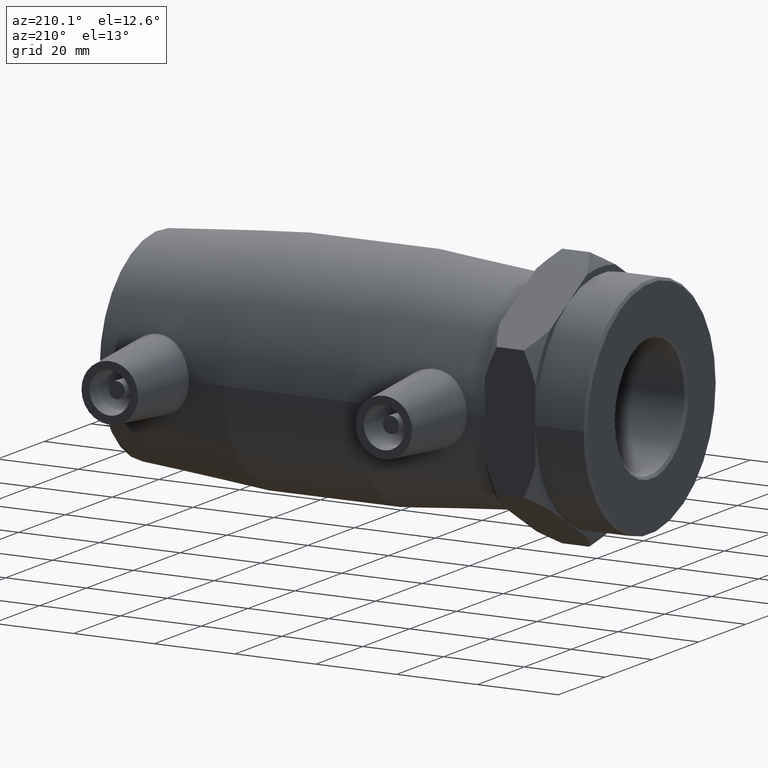
[diagram: clean part render]
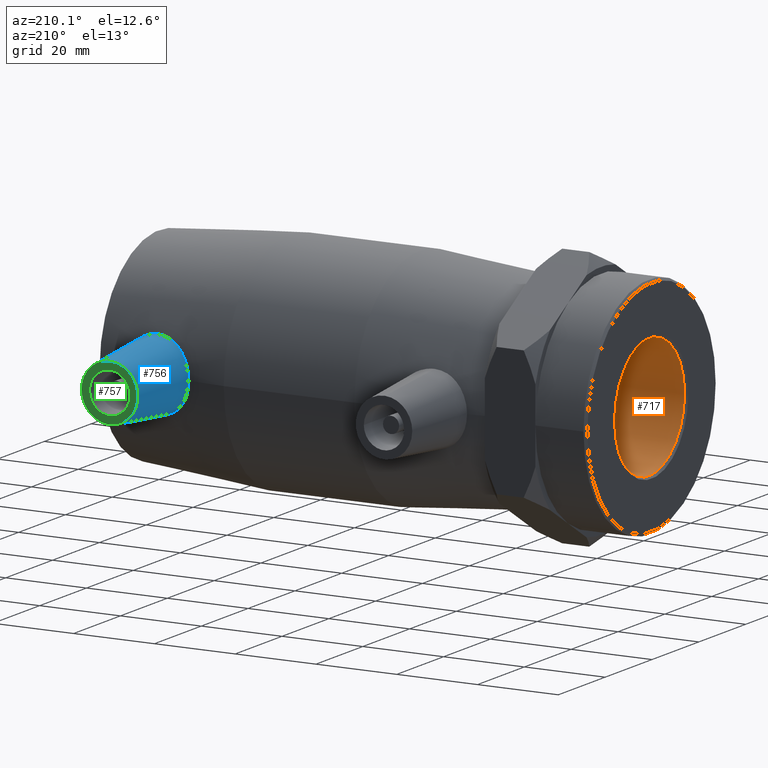
[diagram: same view with three faces highlighted in distinct colors, each labeled with its STEP entity id]
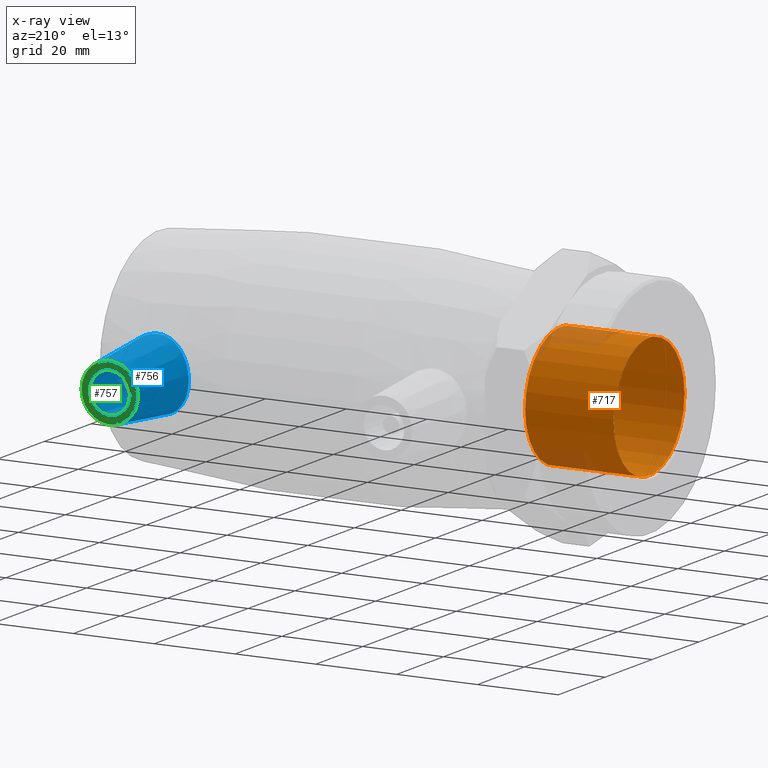
[diagram: x-ray of the same camera — body ghosted, the three highlighted faces saturated]
A machine part, auxiliary view with three faces highlighted in distinct colors.
The next image is the same camera in x-ray (body ghosted, the three faces saturated) — at least one of them is partly hidden behind the body in this view.
Their STEP definitions:

[orange] entity #717 — the highlighted cylindrical surface (bore or boss wall) has radius 15.1455 mm, axis along (1, 0, 0).
#90=CYLINDRICAL_SURFACE('',#780,15.1455);
#128=FACE_BOUND('',#218,.T.);
#158=FACE_OUTER_BOUND('',#217,.T.);
#217=EDGE_LOOP('',(#512));
#218=EDGE_LOOP('',(#513));
#295=CIRCLE('',#776,15.1455);
#298=CIRCLE('',#781,15.1455);
#340=VERTEX_POINT('',#1104);
#343=VERTEX_POINT('',#1112);
#411=EDGE_CURVE('',#340,#340,#295,.T.);
#414=EDGE_CURVE('',#343,#343,#298,.T.);
#512=ORIENTED_EDGE('',*,*,#414,.T.);
#513=ORIENTED_EDGE('',*,*,#411,.F.);
#717=ADVANCED_FACE('',(#158,#128),#90,.F.);
#776=AXIS2_PLACEMENT_3D('',#1105,#885,#886);
#780=AXIS2_PLACEMENT_3D('',#1111,#893,#894);
#781=AXIS2_PLACEMENT_3D('',#1113,#895,#896);
#885=DIRECTION('center_axis',(1.,0.,0.));
#886=DIRECTION('ref_axis',(0.,-1.,0.));
#893=DIRECTION('center_axis',(1.,0.,0.));
#894=DIRECTION('ref_axis',(0.,1.,0.));
#895=DIRECTION('center_axis',(1.,0.,0.));
#896=DIRECTION('ref_axis',(0.,0.,-1.));
#1104=CARTESIAN_POINT('',(-72.9,15.1455,1.85478880964862E-15));
#1105=CARTESIAN_POINT('Origin',(-72.9,0.,0.));
#1111=CARTESIAN_POINT('Origin',(-62.25,0.,0.));
#1112=CARTESIAN_POINT('',(-51.,15.1455,0.));
#1113=CARTESIAN_POINT('Origin',(-51.,0.,0.));

[blue] entity #756 — the highlighted conical surface has half-angle 5 deg.
#15=B_SPLINE_CURVE_WITH_KNOTS('',3,(#1338,#1339,#1340,#1341,#1342,#1343,
#1344,#1345,#1346,#1347,#1348,#1349,#1350,#1351,#1352,#1353,#1354,#1355,
#1356,#1357,#1358,#1359,#1360,#1361,#1362,#1363,#1364,#1365,#1366,#1367,
#1368,#1369,#1370,#1371),.UNSPECIFIED.,.T.,.F.,(4,2,2,2,2,2,2,2,2,2,2,2,
2,2,2,2,4),(0.,0.346158071618119,0.692316143236238,1.03110777904919,1.36989941486215,
1.70869105067511,2.04748268648806,2.39364075810618,2.7397988297243,3.06428255626262,
3.38876628280093,3.71552775466185,4.04228922652276,4.36905069838367,4.69581217024459,
5.0202958967829,5.34477962332122),.UNSPECIFIED.);
#141=FACE_BOUND('',#270,.T.);
#197=FACE_OUTER_BOUND('',#269,.T.);
#269=EDGE_LOOP('',(#670));
#270=EDGE_LOOP('',(#671));
#330=CIRCLE('',#852,7.);
#399=VERTEX_POINT('',#1335);
#400=VERTEX_POINT('',#1337);
#494=EDGE_CURVE('',#399,#399,#330,.T.);
#495=EDGE_CURVE('',#400,#400,#15,.T.);
#670=ORIENTED_EDGE('',*,*,#494,.F.);
#671=ORIENTED_EDGE('',*,*,#495,.F.);
#707=CONICAL_SURFACE('',#851,7.,5.);
#756=ADVANCED_FACE('',(#197,#141),#707,.T.);
#851=AXIS2_PLACEMENT_3D('',#1334,#1059,#1060);
#852=AXIS2_PLACEMENT_3D('',#1336,#1061,#1062);
#1059=DIRECTION('center_axis',(0.,-1.,0.));
#1060=DIRECTION('ref_axis',(-1.,0.,0.));
#1061=DIRECTION('center_axis',(0.,1.,0.));
#1062=DIRECTION('ref_axis',(-1.,0.,0.));
#1334=CARTESIAN_POINT('Origin',(33.95,46.,0.));
#1335=CARTESIAN_POINT('',(40.95,46.,8.57252759403147E-16));
#1336=CARTESIAN_POINT('Origin',(33.95,46.,0.));
#1337=CARTESIAN_POINT('',(34.2691375172751,24.9105624616359,8.83932746647181));
#1338=CARTESIAN_POINT('Ctrl Pts',(34.269137517275,24.9105624616359,8.83932746647181));
#1339=CARTESIAN_POINT('Ctrl Pts',(33.1195796115814,25.0043804123508,8.87261806719104));
#1340=CARTESIAN_POINT('Ctrl Pts',(31.9057669027631,25.193945080598,8.66306600139349));
#1341=CARTESIAN_POINT('Ctrl Pts',(29.6883277880966,25.6854305147335,7.76589252555701));
#1342=CARTESIAN_POINT('Ctrl Pts',(28.6832748945453,25.9819833336324,7.07886484955967));
#1343=CARTESIAN_POINT('Ctrl Pts',(27.1143841099495,26.4989879719534,5.50275143850083));
#1344=CARTESIAN_POINT('Ctrl Pts',(26.4369711317267,26.7553821054636,4.51221539563456));
#1345=CARTESIAN_POINT('Ctrl Pts',(25.5324483785883,27.1118797264214,2.32589998528679));
#1346=CARTESIAN_POINT('Ctrl Pts',(25.3059616696755,27.2085558966467,1.12930545270985));
#1347=CARTESIAN_POINT('Ctrl Pts',(25.3059616696755,27.2085558966467,-1.12930545270985));
#1348=CARTESIAN_POINT('Ctrl Pts',(25.5324483785883,27.1118797264214,-2.32589998528679));
#1349=CARTESIAN_POINT('Ctrl Pts',(26.4369711317267,26.7553821054636,-4.51221539563456));
#1350=CARTESIAN_POINT('Ctrl Pts',(27.1143841099495,26.4989879719534,-5.50275143850083));
#1351=CARTESIAN_POINT('Ctrl Pts',(28.6832748945453,25.9819833336324,-7.07886484955967));
#1352=CARTESIAN_POINT('Ctrl Pts',(29.6883277880966,25.6854305147335,-7.76589252555701));
#1353=CARTESIAN_POINT('Ctrl Pts',(31.9057669027631,25.193945080598,-8.66306600139349));
#1354=CARTESIAN_POINT('Ctrl Pts',(33.1195796115814,25.0043804123508,-8.87261806719104));
#1355=CARTESIAN_POINT('Ctrl Pts',(35.3467169923611,24.8226188290584,-8.80812132377065));
#1356=CARTESIAN_POINT('Ctrl Pts',(36.4907953564612,24.8093361137388,-8.5584811964965));
#1357=CARTESIAN_POINT('Ctrl Pts',(38.5802556623303,24.923904572596,-7.62145566081701));
#1358=CARTESIAN_POINT('Ctrl Pts',(39.5260818463125,25.0467414841874,-6.93445457716229));
#1359=CARTESIAN_POINT('Ctrl Pts',(41.0155357869038,25.2954560517622,-5.37493032462019));
#1360=CARTESIAN_POINT('Ctrl Pts',(41.6604239641301,25.4381217581339,-4.3933043790815));
#1361=CARTESIAN_POINT('Ctrl Pts',(42.5157795161088,25.6421186173142,-2.25065005562807));
#1362=CARTESIAN_POINT('Ctrl Pts',(42.7260185671352,25.7000148869697,-1.08920490620305));
#1363=CARTESIAN_POINT('Ctrl Pts',(42.7260185671352,25.7000148869697,1.08920490620304));
#1364=CARTESIAN_POINT('Ctrl Pts',(42.5157795161088,25.6421186173142,2.25065005562807));
#1365=CARTESIAN_POINT('Ctrl Pts',(41.6604239641301,25.4381217581339,4.3933043790815));
#1366=CARTESIAN_POINT('Ctrl Pts',(41.0155357869038,25.2954560517622,5.37493032462019));
#1367=CARTESIAN_POINT('Ctrl Pts',(39.5260818463125,25.0467414841874,6.93445457716229));
#1368=CARTESIAN_POINT('Ctrl Pts',(38.5802556623303,24.923904572596,7.62145566081701));
#1369=CARTESIAN_POINT('Ctrl Pts',(36.4907953564612,24.8093361137388,8.5584811964965));
#1370=CARTESIAN_POINT('Ctrl Pts',(35.3467169923611,24.8226188290584,8.80812132377065));
#1371=CARTESIAN_POINT('Ctrl Pts',(34.269137517275,24.9105624616359,8.83932746647181));

[green] entity #757 — the highlighted planar face has unit normal (0, -1, 0).
#120=PLANE('',#853);
#142=FACE_BOUND('',#272,.T.);
#198=FACE_OUTER_BOUND('',#271,.T.);
#271=EDGE_LOOP('',(#672));
#272=EDGE_LOOP('',(#673));
#324=CIRCLE('',#839,5.);
#330=CIRCLE('',#852,7.);
#393=VERTEX_POINT('',#1316);
#399=VERTEX_POINT('',#1335);
#488=EDGE_CURVE('',#393,#393,#324,.T.);
#494=EDGE_CURVE('',#399,#399,#330,.T.);
#672=ORIENTED_EDGE('',*,*,#494,.T.);
#673=ORIENTED_EDGE('',*,*,#488,.T.);
#757=ADVANCED_FACE('',(#198,#142),#120,.F.);
#839=AXIS2_PLACEMENT_3D('',#1317,#1035,#1036);
#852=AXIS2_PLACEMENT_3D('',#1336,#1061,#1062);
#853=AXIS2_PLACEMENT_3D('',#1372,#1063,#1064);
#1035=DIRECTION('center_axis',(0.,-1.,0.));
#1036=DIRECTION('ref_axis',(1.,0.,0.));
#1061=DIRECTION('center_axis',(0.,1.,0.));
#1062=DIRECTION('ref_axis',(-1.,0.,0.));
#1063=DIRECTION('center_axis',(0.,-1.,0.));
#1064=DIRECTION('ref_axis',(0.,0.,1.));
#1316=CARTESIAN_POINT('',(28.95,46.,-6.12323399573677E-16));
#1317=CARTESIAN_POINT('Origin',(33.95,46.,0.));
#1335=CARTESIAN_POINT('',(40.95,46.,8.57252759403147E-16));
#1336=CARTESIAN_POINT('Origin',(33.95,46.,0.));
#1372=CARTESIAN_POINT('Origin',(33.95,46.,1.32169407693471E-16));